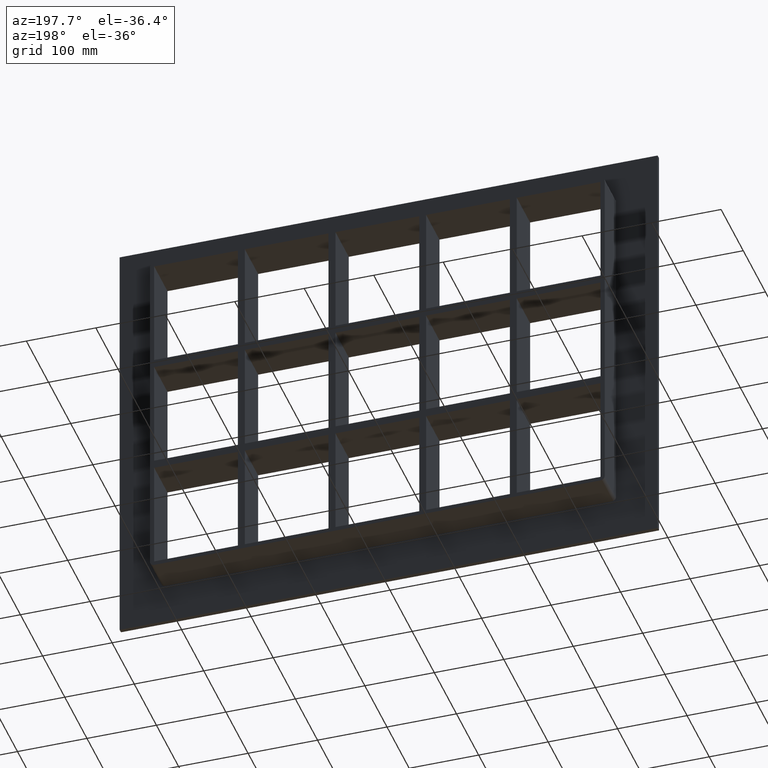
[diagram: clean part render]
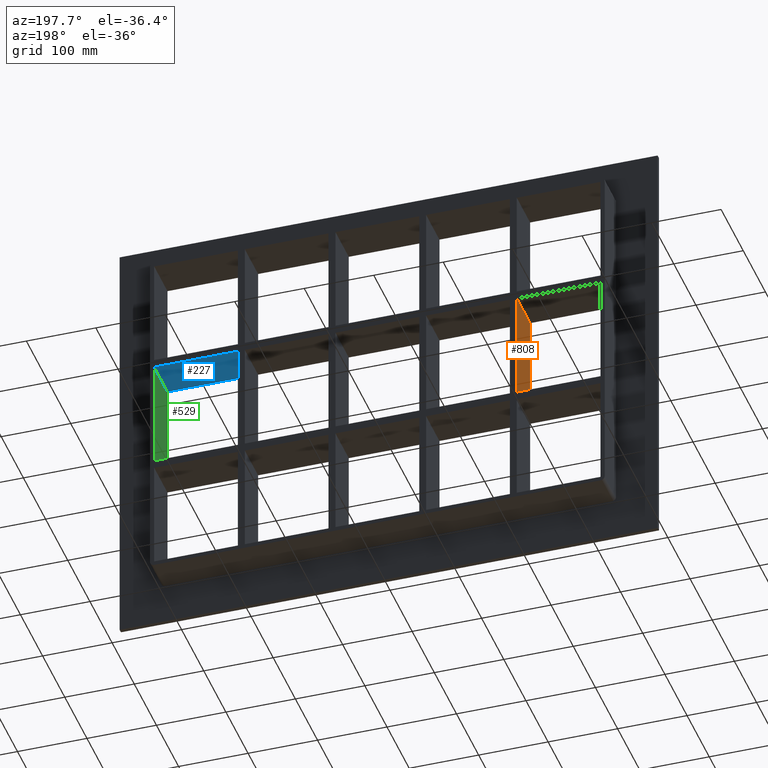
[diagram: same view with three faces highlighted in distinct colors, each labeled with its STEP entity id]
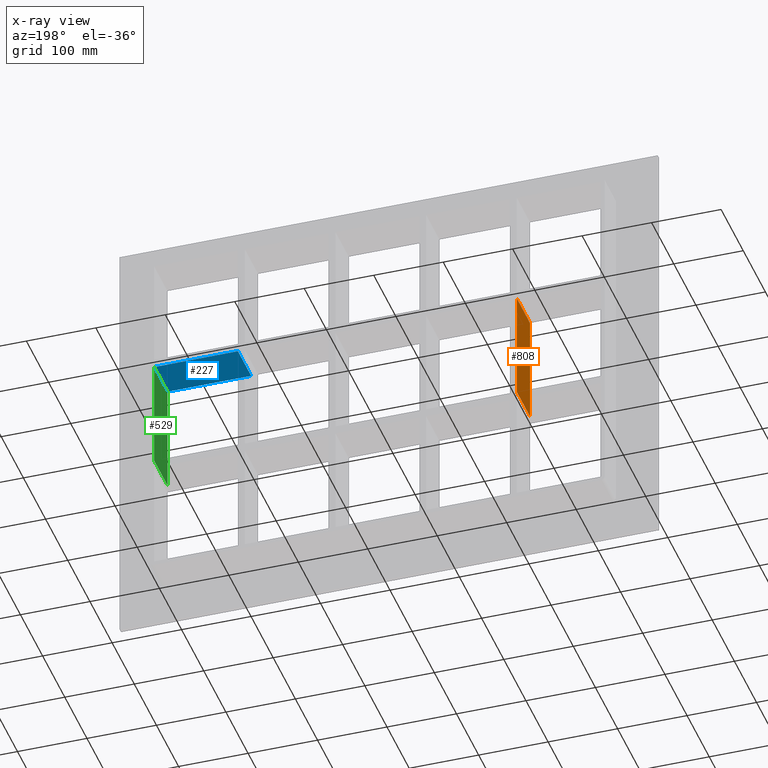
[diagram: x-ray of the same camera — body ghosted, the three highlighted faces saturated]
A machine part, auxiliary view with three faces highlighted in distinct colors.
The next image is the same camera in x-ray (body ghosted, the three faces saturated) — at least one of them is partly hidden behind the body in this view.
Their STEP definitions:

[orange] entity #808 — the highlighted planar face has unit normal (-1, 0, 0).
#73=CARTESIAN_POINT('',(-200.75000000000128,-3.0,79.749999999990564));
#74=VERTEX_POINT('',#73);
#75=CARTESIAN_POINT('',(-200.75000000000128,57.0,79.749999999990564));
#76=VERTEX_POINT('',#75);
#77=CARTESIAN_POINT('',(-200.75000000000131,-3.0,79.74999999999055));
#78=DIRECTION('',(0.0,1.0,0.0));
#79=VECTOR('',#78,60.0);
#80=LINE('',#77,#79);
#81=EDGE_CURVE('',#74,#76,#80,.T.);
#778=CARTESIAN_POINT('',(-200.75000000000125,-3.0,-251.25000000000006));
#779=DIRECTION('',(-1.0,0.0,0.0));
#780=DIRECTION('',(0.0,0.0,1.0));
#781=AXIS2_PLACEMENT_3D('',#778,#779,#780);
#782=PLANE('',#781);
#783=ORIENTED_EDGE('',*,*,#81,.T.);
#784=CARTESIAN_POINT('',(-200.75000000000125,57.0,-79.749999999999943));
#785=VERTEX_POINT('',#784);
#786=CARTESIAN_POINT('',(-200.75000000000128,57.0,-79.749999999999943));
#787=DIRECTION('',(0.0,0.0,1.0));
#788=VECTOR('',#787,159.49999999999051);
#789=LINE('',#786,#788);
#790=EDGE_CURVE('',#785,#76,#789,.T.);
#791=ORIENTED_EDGE('',*,*,#790,.F.);
#792=CARTESIAN_POINT('',(-200.75000000000125,-3.0,-79.749999999999943));
#793=VERTEX_POINT('',#792);
#794=CARTESIAN_POINT('',(-200.75000000000128,57.0,-79.749999999999943));
#795=DIRECTION('',(0.0,-1.0,0.0));
#796=VECTOR('',#795,60.0);
#797=LINE('',#794,#796);
#798=EDGE_CURVE('',#785,#793,#797,.T.);
#799=ORIENTED_EDGE('',*,*,#798,.T.);
#800=CARTESIAN_POINT('',(-200.75000000000128,-3.0,-79.749999999999943));
#801=DIRECTION('',(0.0,0.0,1.0));
#802=VECTOR('',#801,159.49999999999051);
#803=LINE('',#800,#802);
#804=EDGE_CURVE('',#793,#74,#803,.T.);
#805=ORIENTED_EDGE('',*,*,#804,.T.);
#806=EDGE_LOOP('',(#783,#791,#799,#805));
#807=FACE_OUTER_BOUND('',#806,.T.);
#808=ADVANCED_FACE('',(#807),#782,.T.);

[blue] entity #227 — the highlighted planar face has unit normal (0, 0, -1).
#188=CARTESIAN_POINT('',(321.25,-3.0,79.74999999999072));
#189=DIRECTION('',(0.0,0.0,-1.0));
#190=DIRECTION('',(-1.0,0.0,0.0));
#191=AXIS2_PLACEMENT_3D('',#188,#189,#190);
#192=PLANE('',#191);
#193=CARTESIAN_POINT('',(200.74999999999278,57.0,79.749999999990692));
#194=VERTEX_POINT('',#193);
#195=CARTESIAN_POINT('',(200.74999999999278,-3.0,79.749999999990692));
#196=VERTEX_POINT('',#195);
#197=CARTESIAN_POINT('',(200.74999999999278,57.0,79.749999999990678));
#198=DIRECTION('',(0.0,-1.0,0.0));
#199=VECTOR('',#198,60.0);
#200=LINE('',#197,#199);
#201=EDGE_CURVE('',#194,#196,#200,.T.);
#202=ORIENTED_EDGE('',*,*,#201,.F.);
#203=CARTESIAN_POINT('',(321.25000000000006,57.0,79.74999999999072));
#204=VERTEX_POINT('',#203);
#205=CARTESIAN_POINT('',(321.25,57.0,79.74999999999072));
#206=DIRECTION('',(-1.0,0.0,0.0));
#207=VECTOR('',#206,120.50000000000722);
#208=LINE('',#205,#207);
#209=EDGE_CURVE('',#204,#194,#208,.T.);
#210=ORIENTED_EDGE('',*,*,#209,.F.);
#211=CARTESIAN_POINT('',(321.25,-3.0,79.74999999999072));
#212=VERTEX_POINT('',#211);
#213=CARTESIAN_POINT('',(321.25000000000006,-3.0,79.749999999990735));
#214=DIRECTION('',(0.0,1.0,0.0));
#215=VECTOR('',#214,60.000000000000007);
#216=LINE('',#213,#215);
#217=EDGE_CURVE('',#212,#204,#216,.T.);
#218=ORIENTED_EDGE('',*,*,#217,.F.);
#219=CARTESIAN_POINT('',(321.25,-3.0,79.74999999999072));
#220=DIRECTION('',(-1.0,0.0,0.0));
#221=VECTOR('',#220,120.50000000000722);
#222=LINE('',#219,#221);
#223=EDGE_CURVE('',#212,#196,#222,.T.);
#224=ORIENTED_EDGE('',*,*,#223,.T.);
#225=EDGE_LOOP('',(#202,#210,#218,#224));
#226=FACE_OUTER_BOUND('',#225,.T.);
#227=ADVANCED_FACE('',(#226),#192,.T.);

[green] entity #529 — the highlighted planar face has unit normal (1, 0, 0).
#203=CARTESIAN_POINT('',(321.25000000000006,57.0,79.74999999999072));
#204=VERTEX_POINT('',#203);
#211=CARTESIAN_POINT('',(321.25,-3.0,79.74999999999072));
#212=VERTEX_POINT('',#211);
#213=CARTESIAN_POINT('',(321.25000000000006,-3.0,79.749999999990735));
#214=DIRECTION('',(0.0,1.0,0.0));
#215=VECTOR('',#214,60.000000000000007);
#216=LINE('',#213,#215);
#217=EDGE_CURVE('',#212,#204,#216,.T.);
#499=CARTESIAN_POINT('',(321.25000000000006,0.0,251.25000000000003));
#500=DIRECTION('',(1.0,0.0,0.0));
#501=DIRECTION('',(0.0,0.0,-1.0));
#502=AXIS2_PLACEMENT_3D('',#499,#500,#501);
#503=PLANE('',#502);
#504=ORIENTED_EDGE('',*,*,#217,.T.);
#505=CARTESIAN_POINT('',(321.25000000000006,57.0,-79.749999999999943));
#506=VERTEX_POINT('',#505);
#507=CARTESIAN_POINT('',(321.25000000000006,57.0,-79.749999999999929));
#508=DIRECTION('',(0.0,0.0,1.0));
#509=VECTOR('',#508,159.49999999999065);
#510=LINE('',#507,#509);
#511=EDGE_CURVE('',#506,#204,#510,.T.);
#512=ORIENTED_EDGE('',*,*,#511,.F.);
#513=CARTESIAN_POINT('',(321.25,-3.0,-79.749999999999943));
#514=VERTEX_POINT('',#513);
#515=CARTESIAN_POINT('',(321.25000000000006,57.000000000000007,-79.749999999999929));
#516=DIRECTION('',(0.0,-1.0,0.0));
#517=VECTOR('',#516,60.000000000000007);
#518=LINE('',#515,#517);
#519=EDGE_CURVE('',#506,#514,#518,.T.);
#520=ORIENTED_EDGE('',*,*,#519,.T.);
#521=CARTESIAN_POINT('',(321.25000000000006,-3.0,79.74999999999072));
#522=DIRECTION('',(0.0,0.0,-1.0));
#523=VECTOR('',#522,159.49999999999065);
#524=LINE('',#521,#523);
#525=EDGE_CURVE('',#212,#514,#524,.T.);
#526=ORIENTED_EDGE('',*,*,#525,.F.);
#527=EDGE_LOOP('',(#504,#512,#520,#526));
#528=FACE_OUTER_BOUND('',#527,.T.);
#529=ADVANCED_FACE('',(#528),#503,.F.);